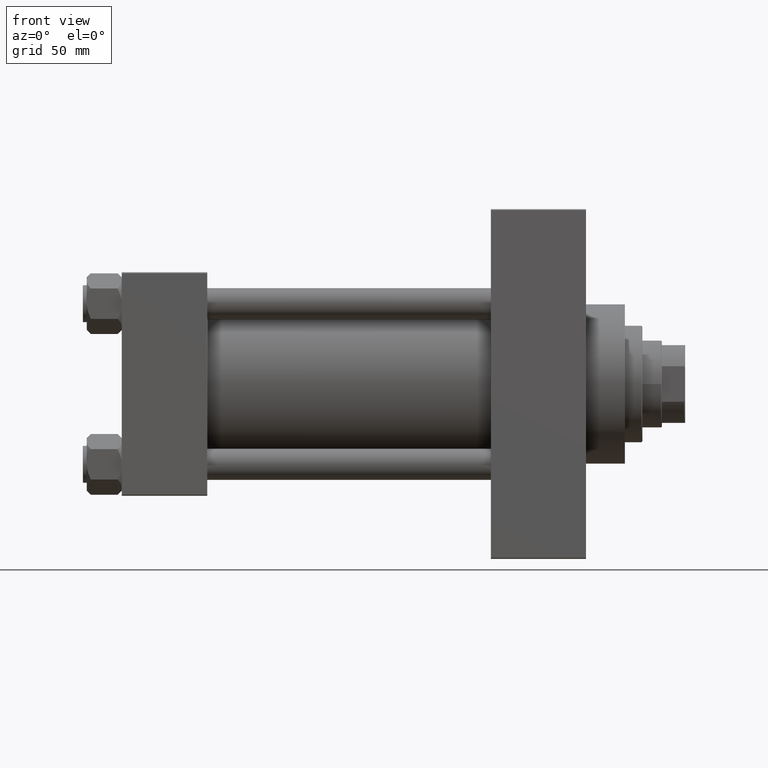
[diagram: clean part render]
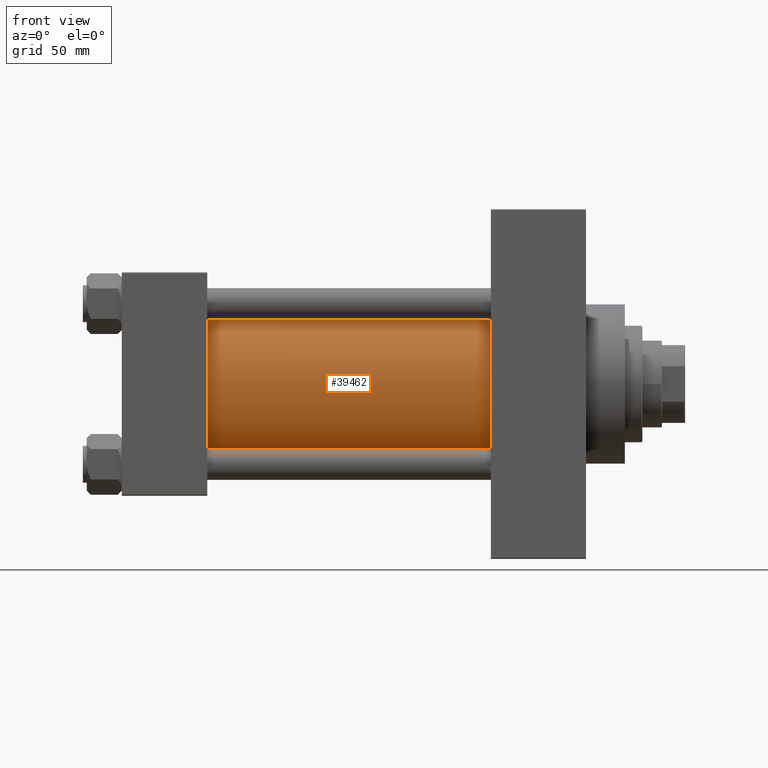
[diagram: same view with one face highlighted and labeled with its STEP entity id]
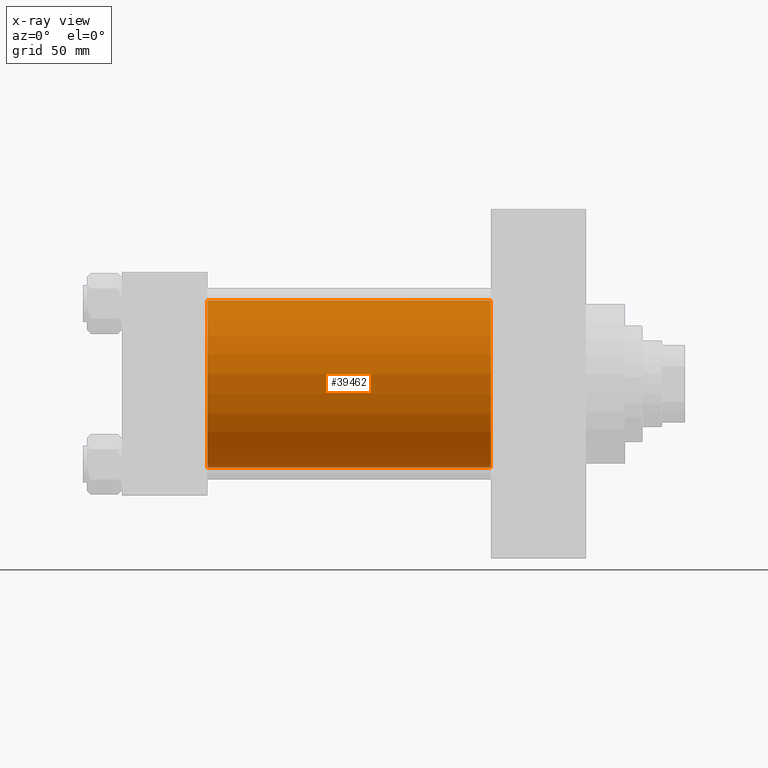
[diagram: x-ray of the same camera — body ghosted, the highlighted face saturated]
A machine part, front view. The second image highlights one B-rep face of the part: STEP entity #39462.
The next image is the same camera in x-ray: the body ghosted, the highlighted face saturated — about 2% of this face is hidden behind the body in this view.
In plain terms, the highlighted cylindrical surface (partial cylindrical patch) has radius 43 mm, axis along (-1, -0, -0).
Its self-contained STEP definition (entity closure, byte-faithful):
#1368 = VECTOR ( 'NONE', #35155, 1000.000000000000000 ) ;
#2140 = AXIS2_PLACEMENT_3D ( 'NONE', #40155, #44235, #11225 ) ;
#3237 = CIRCLE ( 'NONE', #7832, 43.00000000000000000 ) ;
#3580 = ORIENTED_EDGE ( 'NONE', *, *, #29612, .T. ) ;
#4684 = DIRECTION ( 'NONE',  ( 1.000000000000000000, 0.000000000000000000, 0.000000000000000000 ) ) ;
#4901 = CARTESIAN_POINT ( 'NONE',  ( 43.99999999999998579, 2.663896022368408223E-15, -43.00000000000000000 ) ) ;
#5466 = VERTEX_POINT ( 'NONE', #4901 ) ;
#7715 = EDGE_CURVE ( 'NONE', #42192, #5466, #9868, .T. ) ;
#7832 = AXIS2_PLACEMENT_3D ( 'NONE', #30967, #4684, #27113 ) ;
#7838 = EDGE_CURVE ( 'NONE', #34636, #42192, #3237, .T. ) ;
#8086 = VERTEX_POINT ( 'NONE', #33567 ) ;
#9868 = LINE ( 'NONE', #13246, #43996 ) ;
#10701 = EDGE_LOOP ( 'NONE', ( #38776, #38696, #28732, #3580 ) ) ;
#11225 = DIRECTION ( 'NONE',  ( 0.000000000000000000, 0.000000000000000000, 1.000000000000000000 ) ) ;
#13246 = CARTESIAN_POINT ( 'NONE',  ( 190.0000000000000000, 2.663896022368408223E-15, -43.00000000000000000 ) ) ;
#13568 = CARTESIAN_POINT ( 'NONE',  ( 43.99999999999998579, -2.602085213965210642E-15, 0.000000000000000000 ) ) ;
#14146 = FACE_OUTER_BOUND ( 'NONE', #10701, .T. ) ;
#14376 = CYLINDRICAL_SURFACE ( 'NONE', #2140, 43.00000000000000000 ) ;
#17968 = AXIS2_PLACEMENT_3D ( 'NONE', #13568, #35250, #28506 ) ;
#18392 = CARTESIAN_POINT ( 'NONE',  ( 190.0000000000000000, -2.602085213965210642E-15, 43.00000000000000000 ) ) ;
#22434 = EDGE_CURVE ( 'NONE', #34636, #8086, #34918, .T. ) ;
#22792 = CARTESIAN_POINT ( 'NONE',  ( 190.0000000000000000, 2.663896022368408223E-15, -43.00000000000000000 ) ) ;
#27113 = DIRECTION ( 'NONE',  ( 0.000000000000000000, 0.000000000000000000, -1.000000000000000000 ) ) ;
#27954 = DIRECTION ( 'NONE',  ( -1.000000000000000000, -0.000000000000000000, -0.000000000000000000 ) ) ;
#28506 = DIRECTION ( 'NONE',  ( 0.000000000000000000, 0.000000000000000000, 1.000000000000000000 ) ) ;
#28732 = ORIENTED_EDGE ( 'NONE', *, *, #22434, .T. ) ;
#29612 = EDGE_CURVE ( 'NONE', #8086, #5466, #45680, .T. ) ;
#30967 = CARTESIAN_POINT ( 'NONE',  ( 190.0000000000000000, -2.602085213965210642E-15, 0.000000000000000000 ) ) ;
#33567 = CARTESIAN_POINT ( 'NONE',  ( 43.99999999999998579, -2.602085213965210642E-15, 43.00000000000000000 ) ) ;
#34636 = VERTEX_POINT ( 'NONE', #18392 ) ;
#34918 = LINE ( 'NONE', #38780, #1368 ) ;
#35155 = DIRECTION ( 'NONE',  ( -1.000000000000000000, -0.000000000000000000, -0.000000000000000000 ) ) ;
#35250 = DIRECTION ( 'NONE',  ( 1.000000000000000000, -0.000000000000000000, 0.000000000000000000 ) ) ;
#38696 = ORIENTED_EDGE ( 'NONE', *, *, #7838, .F. ) ;
#38776 = ORIENTED_EDGE ( 'NONE', *, *, #7715, .F. ) ;
#38780 = CARTESIAN_POINT ( 'NONE',  ( 190.0000000000000000, -2.602085213965210642E-15, 43.00000000000000000 ) ) ;
#39462 = ADVANCED_FACE ( 'NONE', ( #14146 ), #14376, .T. ) ;
#40155 = CARTESIAN_POINT ( 'NONE',  ( 190.0000000000000000, -2.602085213965210642E-15, 0.000000000000000000 ) ) ;
#42192 = VERTEX_POINT ( 'NONE', #22792 ) ;
#43996 = VECTOR ( 'NONE', #27954, 1000.000000000000000 ) ;
#44235 = DIRECTION ( 'NONE',  ( -1.000000000000000000, -0.000000000000000000, -0.000000000000000000 ) ) ;
#45680 = CIRCLE ( 'NONE', #17968, 43.00000000000000000 ) ;